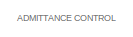
[diagram: root canvas - part 1/3, top left region]
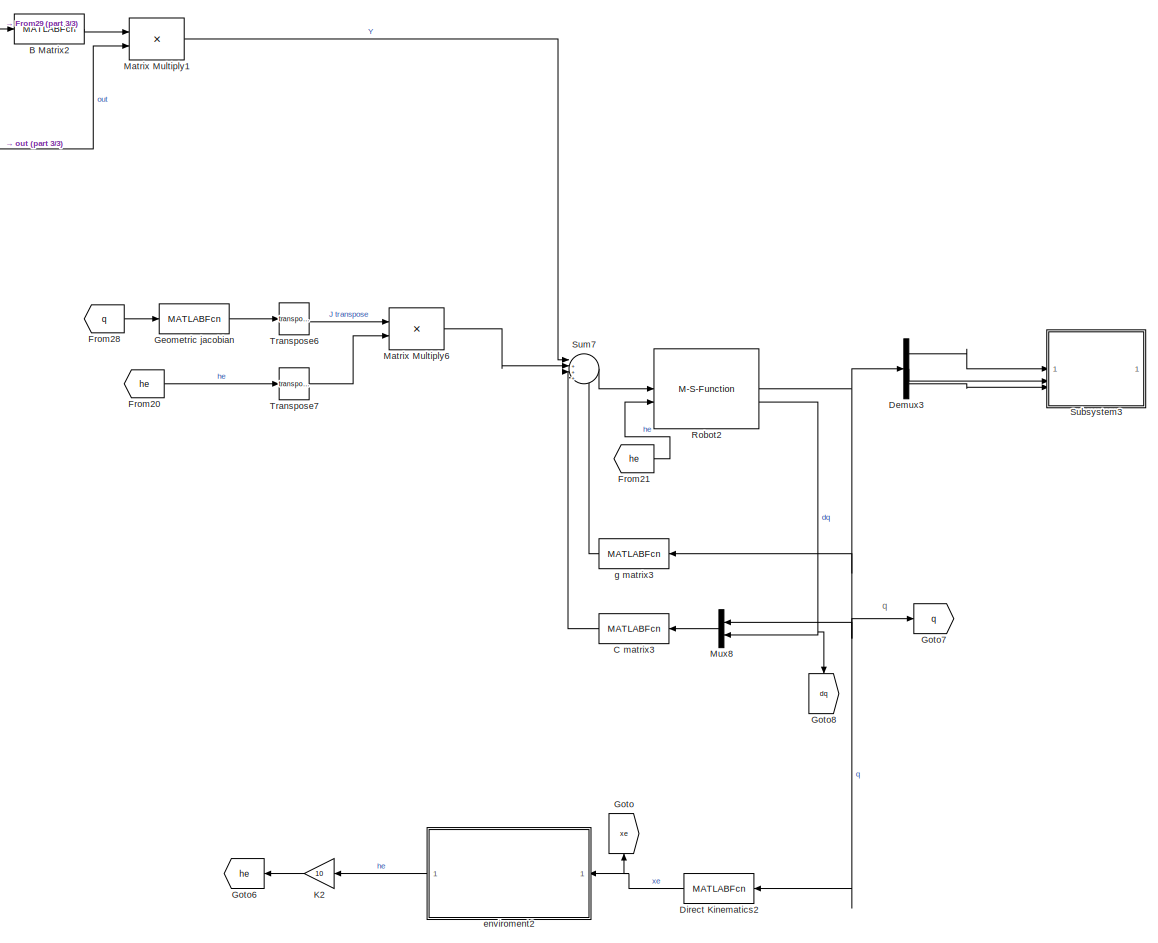
[diagram: root canvas - part 2/3, right side, full height]
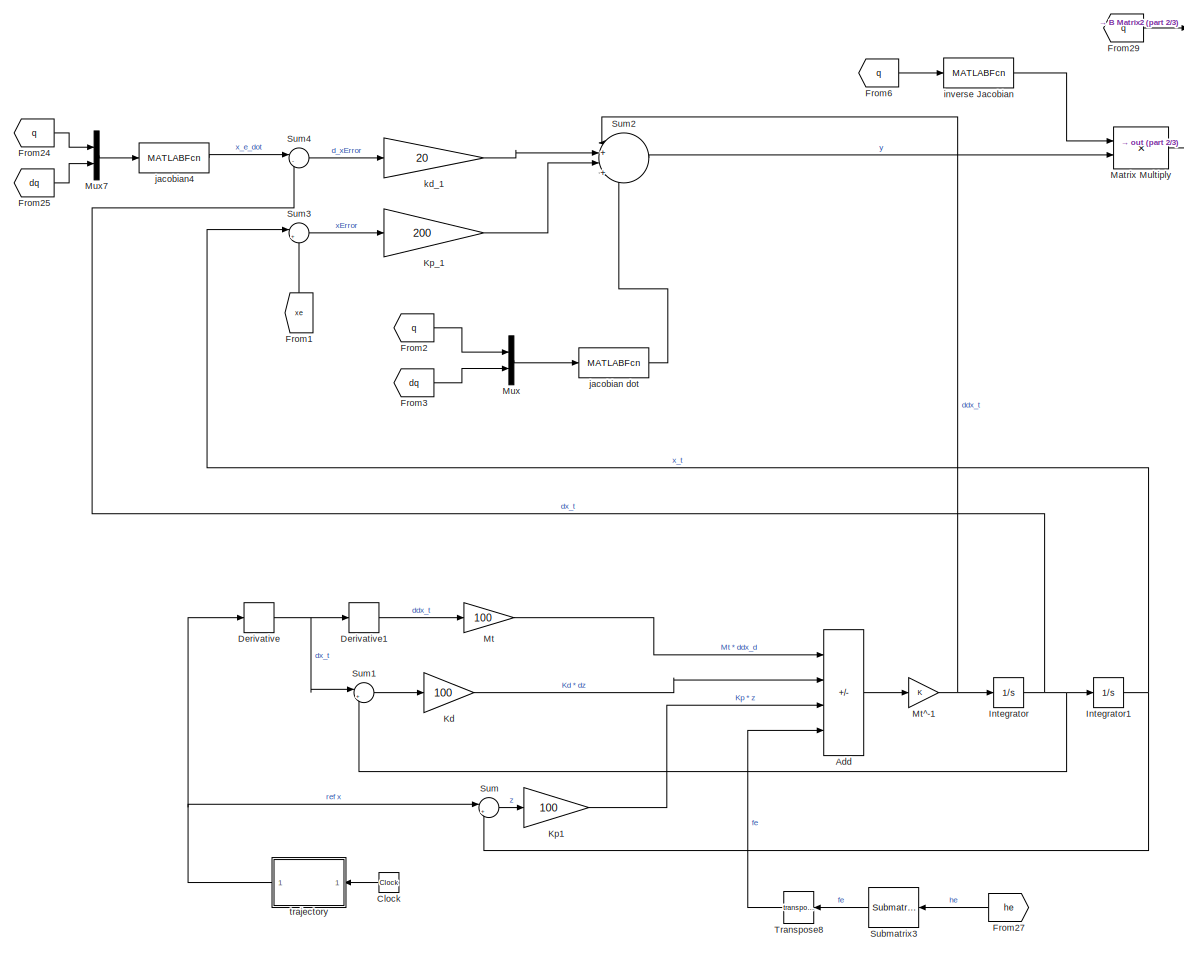
[diagram: root canvas - part 3/3, left side, full height]
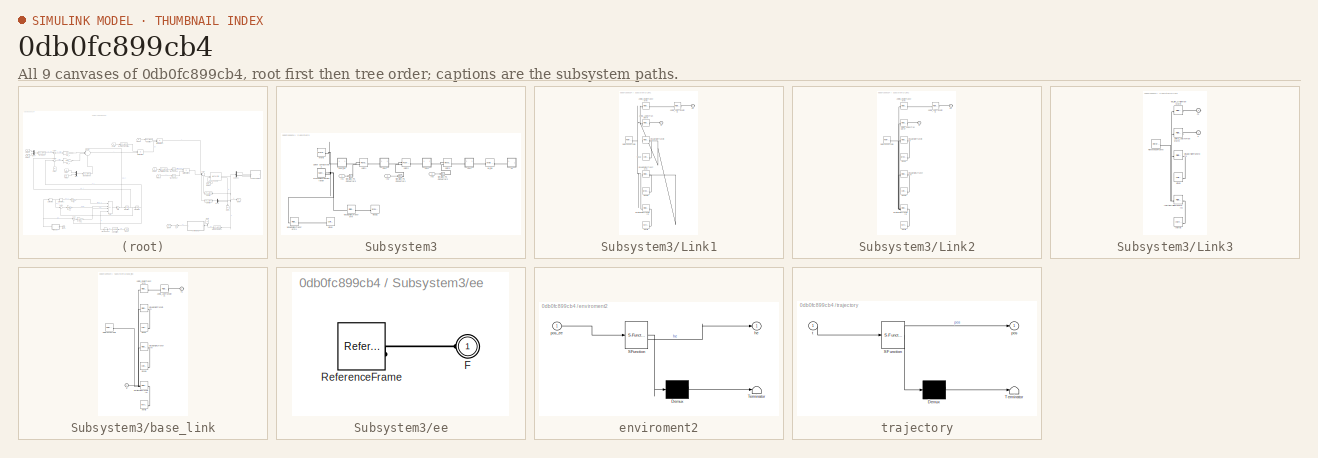
[diagram: thumbnail index - all 9 canvases of the model, root first then tree order]
MODEL slx_0db0fc899cb4
KIND model
CONFIG AbsTol = auto
CONFIG EnableMultiTasking = off
CONFIG FixedStep = auto
CONFIG MaxStep = 10
CONFIG MinStep = auto
CONFIG RelTol = 1
CONFIG SampleTimeConstraint = Unconstrained
CONFIG SolverName = VariableStepAuto
CONFIG StartTime = 0.0
CONFIG StopTime = 10.0
BLOCK [Sum] Add
  IconShape = rectangular
  Inputs = +++-
BLOCK [MATLABFcn] B Matrix2
  MATLABFcn = robotStructure.func.Bmatrix(u(1), u(2), u(3))
  Output1D = off
BLOCK [MATLABFcn] C matrix3
  MATLABFcn = robotStructure.func.Cmatrix(u(1), u(2), u(3), u(4), u(5), u(6)) * [u(4); u(5); u(6)]
  Output1D = off
  OutputSignalType = real
BLOCK [Clock] Clock
  NameLocation = top
BLOCK [Demux] Demux3
  Outputs = 3
BLOCK [Derivative] Derivative
BLOCK [Derivative] Derivative1
BLOCK [MATLABFcn] Direct Kinematics2
  MATLABFcn = robotStructure.func.EE(u(1), u(2), u(3))
  NameLocation = top
  Output1D = off
BLOCK [From] From1
  GotoTag = xe
  NameLocation = right
BLOCK [From] From2
  GotoTag = q
BLOCK [From] From20
  GotoTag = he
BLOCK [From] From21
  GotoTag = he
BLOCK [From] From24
  GotoTag = q
BLOCK [From] From25
  GotoTag = dq
BLOCK [From] From27
  GotoTag = he
  NameLocation = top
BLOCK [From] From28
  GotoTag = q
BLOCK [From] From29
  GotoTag = q
BLOCK [From] From3
  GotoTag = dq
BLOCK [From] From6
  GotoTag = q
BLOCK [MATLABFcn] Geometric jacobian
  MATLABFcn = robotStructure.func.GeometricJacobian(u(1), u(2), u(3))
  Output1D = off
BLOCK [Goto] Goto
  GotoTag = xe
  NameLocation = right
BLOCK [Goto] Goto6
  GotoTag = he
  NameLocation = top
BLOCK [Goto] Goto7
  GotoTag = q
BLOCK [Goto] Goto8
  GotoTag = dq
  NameLocation = left
BLOCK [Integrator] Integrator
BLOCK [Integrator] Integrator1
BLOCK [Gain] K2
  Gain = 10
  NameLocation = top
BLOCK [Gain] Kd
  Gain = 100
BLOCK [Gain] Kp1
  Gain = 100
BLOCK [Gain] Kp_1
  Gain = 200
BLOCK [Product] Matrix Multiply
  Multiplication = Matrix(*)
BLOCK [Product] Matrix Multiply1
  Multiplication = Matrix(*)
BLOCK [Product] Matrix Multiply6
  Multiplication = Matrix(*)
BLOCK [Gain] Mt
  Gain = 100
BLOCK [Gain] Mt^-1
BLOCK [Mux] Mux
  DisplayOption = bar
  Inputs = 2
BLOCK [Mux] Mux7
  DisplayOption = bar
  Inputs = 2
BLOCK [Mux] Mux8
  DisplayOption = bar
  Inputs = 2
  NameLocation = top
BLOCK [M-S-Function] Robot2
  FunctionName = robotDynamicsModel
  Parameters = robotStructure, [0 -0.2 0], [0 0 0]
BLOCK [Reference] Submatrix3  REF=matrix_library/Submatrix
  LibrarySourceBlock = simulink/Matrix\nOperations/Submatrix
  NameLocation = top
  SourceBlock = matrix_library/Submatrix
  SourceType = Submatrix
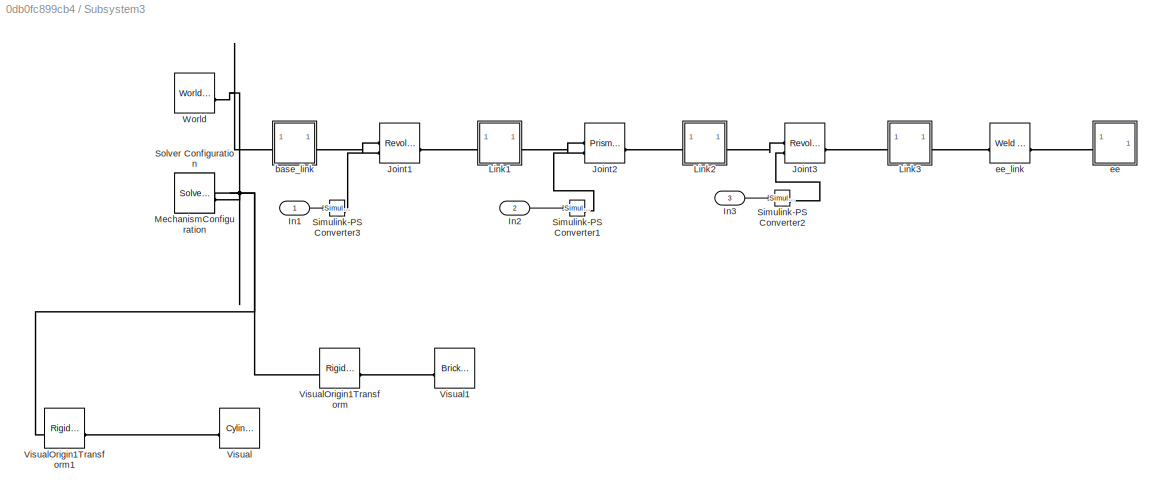
BLOCK [SubSystem] Subsystem3
  Commented = on
BLOCK [Inport] Subsystem3/In1
BLOCK [Inport] Subsystem3/In2
  Port = 2
BLOCK [Inport] Subsystem3/In3
  Port = 3
BLOCK [Reference] Subsystem3/Joint1  REF=sm_lib/Joints/Revolute Joint
  SourceBlock = sm_lib/Joints/Revolute Joint
  SourceType = Revolute Joint
BLOCK [Reference] Subsystem3/Joint2  REF=sm_lib/Joints/Prismatic
Joint
  SourceBlock = sm_lib/Joints/Prismatic\nJoint
  SourceType = Prismatic\nJoint
BLOCK [Reference] Subsystem3/Joint3  REF=sm_lib/Joints/Revolute Joint
  SourceBlock = sm_lib/Joints/Revolute Joint
  SourceType = Revolute Joint
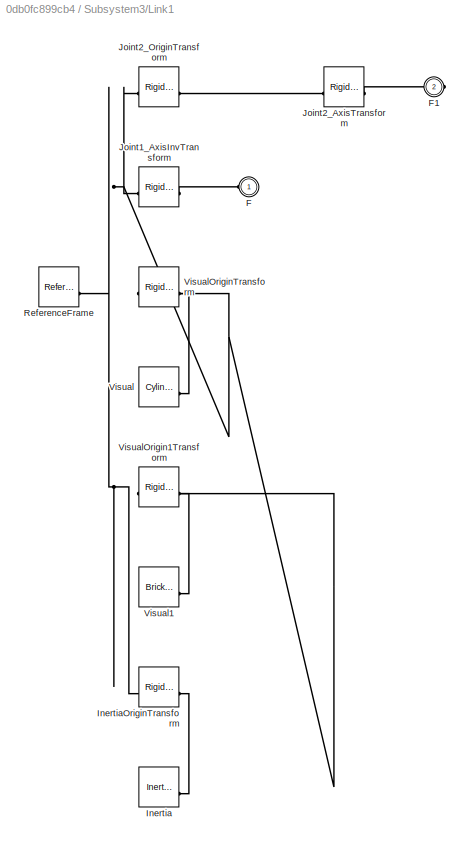
BLOCK [SubSystem] Subsystem3/Link1
BLOCK [PMIOPort] Subsystem3/Link1/F
  Side = Left
BLOCK [PMIOPort] Subsystem3/Link1/F1
  Port = 2
  Side = Right
BLOCK [Reference] Subsystem3/Link1/Inertia  REF=sm_lib/Body Elements/Inertia
  SourceBlock = sm_lib/Body Elements/Inertia
  SourceType = Inertia
BLOCK [Reference] Subsystem3/Link1/InertiaOriginTransform  REF=sm_lib/Frames and
Transforms/Rigid
Transform
  SourceBlock = sm_lib/Frames and\nTransforms/Rigid\nTransform
  SourceType = Rigid\nTransform
BLOCK [Reference] Subsystem3/Link1/Joint1_AxisInvTransform  REF=sm_lib/Frames and
Transforms/Rigid
Transform
  SourceBlock = sm_lib/Frames and\nTransforms/Rigid\nTransform
  SourceType = Rigid\nTransform
BLOCK [Reference] Subsystem3/Link1/Joint2_AxisTransform  REF=sm_lib/Frames and
Transforms/Rigid
Transform
  SourceBlock = sm_lib/Frames and\nTransforms/Rigid\nTransform
  SourceType = Rigid\nTransform
BLOCK [Reference] Subsystem3/Link1/Joint2_OriginTransform  REF=sm_lib/Frames and
Transforms/Rigid
Transform
  SourceBlock = sm_lib/Frames and\nTransforms/Rigid\nTransform
  SourceType = Rigid\nTransform
BLOCK [Reference] Subsystem3/Link1/ReferenceFrame  REF=sm_lib/Frames and
Transforms/Reference
Frame
  SourceBlock = sm_lib/Frames and\nTransforms/Reference\nFrame
  SourceType = Reference\nFrame
BLOCK [Reference] Subsystem3/Link1/Visual  REF=sm_lib/Body Elements/Cylindrical Solid
  SourceBlock = sm_lib/Body Elements/Cylindrical Solid
  SourceType = Cylindrical Solid
BLOCK [Reference] Subsystem3/Link1/Visual1  REF=sm_lib/Body Elements/Brick Solid
  SourceBlock = sm_lib/Body Elements/Brick Solid
  SourceType = Brick Solid
BLOCK [Reference] Subsystem3/Link1/VisualOrigin1Transform  REF=sm_lib/Frames and
Transforms/Rigid
Transform
  SourceBlock = sm_lib/Frames and\nTransforms/Rigid\nTransform
  SourceType = Rigid\nTransform
BLOCK [Reference] Subsystem3/Link1/VisualOriginTransform  REF=sm_lib/Frames and
Transforms/Rigid
Transform
  SourceBlock = sm_lib/Frames and\nTransforms/Rigid\nTransform
  SourceType = Rigid\nTransform
BLOCK [SubSystem] Subsystem3/Link2
BLOCK [PMIOPort] Subsystem3/Link2/F
  Side = Left
BLOCK [PMIOPort] Subsystem3/Link2/F1
  Port = 2
  Side = Right
BLOCK [Reference] Subsystem3/Link2/Inertia  REF=sm_lib/Body Elements/Inertia
  SourceBlock = sm_lib/Body Elements/Inertia
  SourceType = Inertia
BLOCK [Reference] Subsystem3/Link2/InertiaOriginTransform  REF=sm_lib/Frames and
Transforms/Rigid
Transform
  SourceBlock = sm_lib/Frames and\nTransforms/Rigid\nTransform
  SourceType = Rigid\nTransform
BLOCK [Reference] Subsystem3/Link2/Joint2_AxisInvTransform  REF=sm_lib/Frames and
Transforms/Rigid
Transform
  SourceBlock = sm_lib/Frames and\nTransforms/Rigid\nTransform
  SourceType = Rigid\nTransform
BLOCK [Reference] Subsystem3/Link2/Joint3_AxisTransform  REF=sm_lib/Frames and
Transforms/Rigid
Transform
  SourceBlock = sm_lib/Frames and\nTransforms/Rigid\nTransform
  SourceType = Rigid\nTransform
BLOCK [Reference] Subsystem3/Link2/Joint3_OriginTransform  REF=sm_lib/Frames and
Transforms/Rigid
Transform
  SourceBlock = sm_lib/Frames and\nTransforms/Rigid\nTransform
  SourceType = Rigid\nTransform
BLOCK [Reference] Subsystem3/Link2/ReferenceFrame  REF=sm_lib/Frames and
Transforms/Reference
Frame
  SourceBlock = sm_lib/Frames and\nTransforms/Reference\nFrame
  SourceType = Reference\nFrame
BLOCK [Reference] Subsystem3/Link2/Visual  REF=sm_lib/Body Elements/Brick Solid
  SourceBlock = sm_lib/Body Elements/Brick Solid
  SourceType = Brick Solid
BLOCK [Reference] Subsystem3/Link2/Visual1  REF=sm_lib/Body Elements/Cylindrical Solid
  SourceBlock = sm_lib/Body Elements/Cylindrical Solid
  SourceType = Cylindrical Solid
BLOCK [Reference] Subsystem3/Link2/VisualOrigin1Transform  REF=sm_lib/Frames and
Transforms/Rigid
Transform
  SourceBlock = sm_lib/Frames and\nTransforms/Rigid\nTransform
  SourceType = Rigid\nTransform
BLOCK [Reference] Subsystem3/Link2/VisualOriginTransform  REF=sm_lib/Frames and
Transforms/Rigid
Transform
  SourceBlock = sm_lib/Frames and\nTransforms/Rigid\nTransform
  SourceType = Rigid\nTransform
BLOCK [SubSystem] Subsystem3/Link3
BLOCK [PMIOPort] Subsystem3/Link3/F
  Side = Left
BLOCK [PMIOPort] Subsystem3/Link3/F1
  Port = 2
  Side = Right
BLOCK [Reference] Subsystem3/Link3/Inertia  REF=sm_lib/Body Elements/Inertia
  SourceBlock = sm_lib/Body Elements/Inertia
  SourceType = Inertia
BLOCK [Reference] Subsystem3/Link3/InertiaOriginTransform  REF=sm_lib/Frames and
Transforms/Rigid
Transform
  SourceBlock = sm_lib/Frames and\nTransforms/Rigid\nTransform
  SourceType = Rigid\nTransform
BLOCK [Reference] Subsystem3/Link3/Joint3_AxisInvTransform  REF=sm_lib/Frames and
Transforms/Rigid
Transform
  SourceBlock = sm_lib/Frames and\nTransforms/Rigid\nTransform
  SourceType = Rigid\nTransform
BLOCK [Reference] Subsystem3/Link3/ReferenceFrame  REF=sm_lib/Frames and
Transforms/Reference
Frame
  SourceBlock = sm_lib/Frames and\nTransforms/Reference\nFrame
  SourceType = Reference\nFrame
BLOCK [Reference] Subsystem3/Link3/Visual  REF=sm_lib/Body Elements/Cylindrical Solid
  SourceBlock = sm_lib/Body Elements/Cylindrical Solid
  SourceType = Cylindrical Solid
BLOCK [Reference] Subsystem3/Link3/VisualOriginTransform  REF=sm_lib/Frames and
Transforms/Rigid
Transform
  SourceBlock = sm_lib/Frames and\nTransforms/Rigid\nTransform
  SourceType = Rigid\nTransform
BLOCK [Reference] Subsystem3/Link3/ee_link_OriginTransform  REF=sm_lib/Frames and
Transforms/Rigid
Transform
  SourceBlock = sm_lib/Frames and\nTransforms/Rigid\nTransform
  SourceType = Rigid\nTransform
BLOCK [Reference] Subsystem3/MechanismConfiguration  REF=sm_lib/Utilities/Mechanism
Configuration
  SourceBlock = sm_lib/Utilities/Mechanism\nConfiguration
  SourceType = Mechanism\nConfiguration
BLOCK [Reference] Subsystem3/Simulink-PS Converter1  REF=nesl_utility/Simulink-PS
Converter
  SourceBlock = nesl_utility/Simulink-PS\nConverter
  SourceType = Simulink-PS\nConverter
BLOCK [Reference] Subsystem3/Simulink-PS Converter2  REF=nesl_utility/Simulink-PS
Converter
  SourceBlock = nesl_utility/Simulink-PS\nConverter
  SourceType = Simulink-PS\nConverter
BLOCK [Reference] Subsystem3/Simulink-PS Converter3  REF=nesl_utility/Simulink-PS
Converter
  SourceBlock = nesl_utility/Simulink-PS\nConverter
  SourceType = Simulink-PS\nConverter
BLOCK [Reference] Subsystem3/Solver Configuration  REF=nesl_utility/Solver
Configuration
  SourceBlock = nesl_utility/Solver\nConfiguration
  SourceType = Solver\nConfiguration
BLOCK [Reference] Subsystem3/Visual  REF=sm_lib/Body Elements/Cylindrical Solid
  NameLocation = top
  SourceBlock = sm_lib/Body Elements/Cylindrical Solid
  SourceType = Cylindrical Solid
BLOCK [Reference] Subsystem3/Visual1  REF=sm_lib/Body Elements/Brick Solid
  NameLocation = top
  SourceBlock = sm_lib/Body Elements/Brick Solid
  SourceType = Brick Solid
BLOCK [Reference] Subsystem3/VisualOrigin1Transform  REF=sm_lib/Frames and
Transforms/Rigid
Transform
  SourceBlock = sm_lib/Frames and\nTransforms/Rigid\nTransform
  SourceType = Rigid\nTransform
BLOCK [Reference] Subsystem3/VisualOrigin1Transform1  REF=sm_lib/Frames and
Transforms/Rigid
Transform
  SourceBlock = sm_lib/Frames and\nTransforms/Rigid\nTransform
  SourceType = Rigid\nTransform
BLOCK [Reference] Subsystem3/World  REF=sm_lib/Frames and
Transforms/World Frame
  SourceBlock = sm_lib/Frames and\nTransforms/World Frame
  SourceType = World Frame
BLOCK [SubSystem] Subsystem3/base_link
BLOCK [PMIOPort] Subsystem3/base_link/F
  Side = Left
BLOCK [PMIOPort] Subsystem3/base_link/F1
  Port = 2
  Side = Right
BLOCK [Reference] Subsystem3/base_link/Inertia  REF=sm_lib/Body Elements/Inertia
  SourceBlock = sm_lib/Body Elements/Inertia
  SourceType = Inertia
BLOCK [Reference] Subsystem3/base_link/InertiaOriginTransform  REF=sm_lib/Frames and
Transforms/Rigid
Transform
  SourceBlock = sm_lib/Frames and\nTransforms/Rigid\nTransform
  SourceType = Rigid\nTransform
BLOCK [Reference] Subsystem3/base_link/Joint1_AxisTransform  REF=sm_lib/Frames and
Transforms/Rigid
Transform
  SourceBlock = sm_lib/Frames and\nTransforms/Rigid\nTransform
  SourceType = Rigid\nTransform
BLOCK [Reference] Subsystem3/base_link/Joint1_OriginTransform  REF=sm_lib/Frames and
Transforms/Rigid
Transform
  SourceBlock = sm_lib/Frames and\nTransforms/Rigid\nTransform
  SourceType = Rigid\nTransform
BLOCK [Reference] Subsystem3/base_link/ReferenceFrame  REF=sm_lib/Frames and
Transforms/Reference
Frame
  SourceBlock = sm_lib/Frames and\nTransforms/Reference\nFrame
  SourceType = Reference\nFrame
BLOCK [Reference] Subsystem3/base_link/Visual  REF=sm_lib/Body Elements/Cylindrical Solid
  SourceBlock = sm_lib/Body Elements/Cylindrical Solid
  SourceType = Cylindrical Solid
BLOCK [Reference] Subsystem3/base_link/Visual1  REF=sm_lib/Body Elements/Cylindrical Solid
  SourceBlock = sm_lib/Body Elements/Cylindrical Solid
  SourceType = Cylindrical Solid
BLOCK [Reference] Subsystem3/base_link/VisualOrigin1Transform  REF=sm_lib/Frames and
Transforms/Rigid
Transform
  SourceBlock = sm_lib/Frames and\nTransforms/Rigid\nTransform
  SourceType = Rigid\nTransform
BLOCK [Reference] Subsystem3/base_link/VisualOriginTransform  REF=sm_lib/Frames and
Transforms/Rigid
Transform
  SourceBlock = sm_lib/Frames and\nTransforms/Rigid\nTransform
  SourceType = Rigid\nTransform
BLOCK [SubSystem] Subsystem3/ee
BLOCK [PMIOPort] Subsystem3/ee/F
  Side = Left
BLOCK [Reference] Subsystem3/ee/ReferenceFrame  REF=sm_lib/Frames and
Transforms/Reference
Frame
  SourceBlock = sm_lib/Frames and\nTransforms/Reference\nFrame
  SourceType = Reference\nFrame
BLOCK [Reference] Subsystem3/ee_link  REF=sm_lib/Joints/Weld Joint
  SourceBlock = sm_lib/Joints/Weld Joint
  SourceType = Weld Joint
BLOCK [Sum] Sum
  Inputs = |+-
BLOCK [Sum] Sum1
  Inputs = |+-
BLOCK [Sum] Sum2
  Inputs = |+|+|+|-
BLOCK [Sum] Sum3
  Inputs = |+-
BLOCK [Sum] Sum4
  Inputs = |-+
BLOCK [Sum] Sum7
  Inputs = |++++
BLOCK [Math] Transpose6
  Operator = transpose
BLOCK [Math] Transpose7
  Operator = transpose
BLOCK [Math] Transpose8
  NameLocation = top
  Operator = transpose
BLOCK [SubSystem] enviroment2
  ErrorFcn = Stateflow.Translate.translate
  NameLocation = top
  PermitHierarchicalResolution = ExplicitOnly
  SFBlockType = MATLAB Function
  TreatAsAtomicUnit = on
BLOCK [Demux] enviroment2/ Demux 
  Outputs = 1
BLOCK [S-Function] enviroment2/ SFunction 
  EnableBusSupport = on
  FunctionName = sf_sfun
  PortCounts = [1 2]
  SFcnIsStateOwnerBlock = off
  SFunctionDeploymentMode = off
  Tag = Stateflow S-Function 3
BLOCK [Terminator] enviroment2/ Terminator 
BLOCK [Outport] enviroment2/he
BLOCK [Inport] enviroment2/pos_ee
BLOCK [MATLABFcn] g matrix3
  MATLABFcn = robotStructure.func.Gmatrix(u(1), u(2), u(3))
  Output1D = off
  OutputSignalType = real
BLOCK [MATLABFcn] inverse Jacobian
  MATLABFcn = robotStructure.func.AnalitycalJacobianInverse(u(1), u(2), u(3))
  Output1D = off
BLOCK [MATLABFcn] jacobian dot
  MATLABFcn = robotStructure.func.AnalitycalJacobianDot(u(1), u(2), u(3), u(4), u(5), u(6)) *  [u(4),u(5),u(6)]'
  Output1D = off
  OutputDimensions = [3,1]
  OutputSignalType = real
BLOCK [MATLABFcn] jacobian4
  MATLABFcn = robotStructure.func.AnalitycalJacobian(u(1), u(2), u(3)) * [u(4); u(5); u(6)]
  Output1D = off
BLOCK [Gain] kd_1
  Gain = 20
BLOCK [SubSystem] trajectory
  ErrorFcn = Stateflow.Translate.translate
  NameLocation = top
  PermitHierarchicalResolution = ExplicitOnly
  SFBlockType = MATLAB Function
  TreatAsAtomicUnit = on
BLOCK [Demux] trajectory/ Demux 
  Outputs = 1
BLOCK [S-Function] trajectory/ SFunction 
  EnableBusSupport = on
  FunctionName = sf_sfun
  PortCounts = [1 2]
  SFcnIsStateOwnerBlock = off
  SFunctionDeploymentMode = off
  Tag = Stateflow S-Function 2
BLOCK [Terminator] trajectory/ Terminator 
BLOCK [Outport] trajectory/pos
BLOCK [Inport] trajectory/t
ANNOTATION (root): ADMITTANCE CONTROL
ANNOTATION (root): q
LINE Add:1 -> Mt^-1:1
LINE B Matrix2:1 -> Matrix Multiply1:1
LINE C matrix3:1 -> Sum7:3
LINE Clock:1 -> trajectory:1
LINE Demux3:1 -> Subsystem3:1
LINE Demux3:2 -> Subsystem3:2
LINE Demux3:3 -> Subsystem3:3
LINE Derivative1:1 -> Mt:1
NET Derivative:1 -> Derivative1:1, Sum1:1
NET Direct Kinematics2:1 -> Goto:1, enviroment2:1
LINE From1:1 -> Sum3:2
LINE From20:1 -> Transpose7:1
LINE From21:1 -> Robot2:2
LINE From24:1 -> Mux7:1
LINE From25:1 -> Mux7:2
LINE From27:1 -> Submatrix3:1
LINE From28:1 -> Geometric jacobian:1
LINE From29:1 -> B Matrix2:1
LINE From2:1 -> Mux:1
LINE From3:1 -> Mux:2
LINE From6:1 -> inverse Jacobian:1
LINE Geometric jacobian:1 -> Transpose6:1
NET Integrator1:1 -> Sum3:1, Sum:2
NET Integrator:1 -> Integrator1:1, Sum1:2, Sum4:2
LINE K2:1 -> Goto6:1
LINE Kd:1 -> Add:2
LINE Kp1:1 -> Add:3
LINE Kp_1:1 -> Sum2:3
LINE Matrix Multiply1:1 -> Sum7:1
LINE Matrix Multiply6:1 -> Sum7:2
LINE Matrix Multiply:1 -> Matrix Multiply1:2
LINE Mt:1 -> Add:1
NET Mt^-1:1 -> Integrator:1, Sum2:1
LINE Mux7:1 -> jacobian4:1
LINE Mux8:1 -> C matrix3:1
LINE Mux:1 -> jacobian dot:1
NET Robot2:1 -> Demux3:1, Direct Kinematics2:1, Goto7:1, Mux8:1, g matrix3:1
NET Robot2:2 -> Goto8:1, Mux8:2
LINE Submatrix3:1 -> Transpose8:1
LINE Subsystem3/In1:1 -> Subsystem3/Simulink-PS Converter3:1
LINE Subsystem3/In2:1 -> Subsystem3/Simulink-PS Converter1:1
LINE Subsystem3/In3:1 -> Subsystem3/Simulink-PS Converter2:1
LINE Sum1:1 -> Kd:1
LINE Sum2:1 -> Matrix Multiply:2
LINE Sum3:1 -> Kp_1:1
LINE Sum4:1 -> kd_1:1
LINE Sum7:1 -> Robot2:1
LINE Sum:1 -> Kp1:1
LINE Transpose6:1 -> Matrix Multiply6:1
LINE Transpose7:1 -> Matrix Multiply6:2
LINE Transpose8:1 -> Add:4
LINE enviroment2:1 -> K2:1
LINE g matrix3:1 -> Sum7:4
LINE inverse Jacobian:1 -> Matrix Multiply:1
LINE jacobian dot:1 -> Sum2:4
LINE jacobian4:1 -> Sum4:1
LINE kd_1:1 -> Sum2:2
NET trajectory:1 -> Derivative:1, Sum:1
PLINE Subsystem3/Joint1:LConn1 -- Subsystem3/base_link:RConn1
PLINE Subsystem3/Joint1:LConn2 -- Subsystem3/Simulink-PS Converter3:RConn1
PLINE Subsystem3/Joint1:RConn1 -- Subsystem3/Link1:LConn1
PLINE Subsystem3/Joint2:LConn1 -- Subsystem3/Link1:RConn1
PLINE Subsystem3/Joint2:LConn2 -- Subsystem3/Simulink-PS Converter1:RConn1
PLINE Subsystem3/Joint2:RConn1 -- Subsystem3/Link2:LConn1
PLINE Subsystem3/Joint3:LConn1 -- Subsystem3/Link2:RConn1
PLINE Subsystem3/Joint3:LConn2 -- Subsystem3/Simulink-PS Converter2:RConn1
PLINE Subsystem3/Joint3:RConn1 -- Subsystem3/Link3:LConn1
PLINE Subsystem3/Link1/F1:RConn1 -- Subsystem3/Link1/Joint2_AxisTransform:RConn1
PLINE Subsystem3/Link1/F:RConn1 -- Subsystem3/Link1/Joint1_AxisInvTransform:RConn1
PLINE Subsystem3/Link1/Inertia:RConn1 -- Subsystem3/Link1/InertiaOriginTransform:RConn1
PNET net1: Subsystem3/Link1/InertiaOriginTransform:LConn1 -- Subsystem3/Link1/Joint1_AxisInvTransform:LConn1 -- Subsystem3/Link1/Joint2_OriginTransform:LConn1 -- Subsystem3/Link1/ReferenceFrame:RConn1 -- Subsystem3/Link1/VisualOrigin1Transform:LConn1 -- Subsystem3/Link1/VisualOriginTransform:LConn1
PLINE Subsystem3/Link1/Joint2_AxisTransform:LConn1 -- Subsystem3/Link1/Joint2_OriginTransform:RConn1
PLINE Subsystem3/Link1/Visual1:RConn1 -- Subsystem3/Link1/VisualOrigin1Transform:RConn1
PLINE Subsystem3/Link1/Visual:RConn1 -- Subsystem3/Link1/VisualOriginTransform:RConn1
PLINE Subsystem3/Link2/F1:RConn1 -- Subsystem3/Link2/Joint3_AxisTransform:RConn1
PLINE Subsystem3/Link2/F:RConn1 -- Subsystem3/Link2/Joint2_AxisInvTransform:RConn1
PLINE Subsystem3/Link2/Inertia:RConn1 -- Subsystem3/Link2/InertiaOriginTransform:RConn1
PNET net2: Subsystem3/Link2/InertiaOriginTransform:LConn1 -- Subsystem3/Link2/Joint2_AxisInvTransform:LConn1 -- Subsystem3/Link2/Joint3_OriginTransform:LConn1 -- Subsystem3/Link2/ReferenceFrame:RConn1 -- Subsystem3/Link2/VisualOrigin1Transform:LConn1 -- Subsystem3/Link2/VisualOriginTransform:LConn1
PLINE Subsystem3/Link2/Joint3_AxisTransform:LConn1 -- Subsystem3/Link2/Joint3_OriginTransform:RConn1
PLINE Subsystem3/Link2/Visual1:RConn1 -- Subsystem3/Link2/VisualOrigin1Transform:RConn1
PLINE Subsystem3/Link2/Visual:RConn1 -- Subsystem3/Link2/VisualOriginTransform:RConn1
PLINE Subsystem3/Link3/F1:RConn1 -- Subsystem3/Link3/ee_link_OriginTransform:RConn1
PLINE Subsystem3/Link3/F:RConn1 -- Subsystem3/Link3/Joint3_AxisInvTransform:RConn1
PLINE Subsystem3/Link3/Inertia:RConn1 -- Subsystem3/Link3/InertiaOriginTransform:RConn1
PNET net3: Subsystem3/Link3/InertiaOriginTransform:LConn1 -- Subsystem3/Link3/Joint3_AxisInvTransform:LConn1 -- Subsystem3/Link3/ReferenceFrame:RConn1 -- Subsystem3/Link3/VisualOriginTransform:LConn1 -- Subsystem3/Link3/ee_link_OriginTransform:LConn1
PLINE Subsystem3/Link3/Visual:RConn1 -- Subsystem3/Link3/VisualOriginTransform:RConn1
PLINE Subsystem3/Link3:RConn1 -- Subsystem3/ee_link:LConn1
PNET net4: Subsystem3/MechanismConfiguration:RConn1 -- Subsystem3/Solver Configuration:RConn1 -- Subsystem3/VisualOrigin1Transform1:LConn1 -- Subsystem3/VisualOrigin1Transform:LConn1 -- Subsystem3/World:RConn1 -- Subsystem3/base_link:LConn1
PLINE Subsystem3/Visual1:RConn1 -- Subsystem3/VisualOrigin1Transform:RConn1
PLINE Subsystem3/Visual:RConn1 -- Subsystem3/VisualOrigin1Transform1:RConn1
PLINE Subsystem3/base_link/F1:RConn1 -- Subsystem3/base_link/Joint1_AxisTransform:RConn1
PNET net5: Subsystem3/base_link/F:RConn1 -- Subsystem3/base_link/InertiaOriginTransform:LConn1 -- Subsystem3/base_link/Joint1_OriginTransform:LConn1 -- Subsystem3/base_link/ReferenceFrame:RConn1 -- Subsystem3/base_link/VisualOrigin1Transform:LConn1 -- Subsystem3/base_link/VisualOriginTransform:LConn1
PLINE Subsystem3/base_link/Inertia:RConn1 -- Subsystem3/base_link/InertiaOriginTransform:RConn1
PLINE Subsystem3/base_link/Joint1_AxisTransform:LConn1 -- Subsystem3/base_link/Joint1_OriginTransform:RConn1
PLINE Subsystem3/base_link/Visual1:RConn1 -- Subsystem3/base_link/VisualOrigin1Transform:RConn1
PLINE Subsystem3/base_link/Visual:RConn1 -- Subsystem3/base_link/VisualOriginTransform:RConn1
PLINE Subsystem3/ee/F:RConn1 -- Subsystem3/ee/ReferenceFrame:RConn1
PLINE Subsystem3/ee:LConn1 -- Subsystem3/ee_link:RConn1
note: NET lines group one-source signal fan-out (src -> all destinations, sorted); 1:1 wires keep LINE; PNET lines group multi-terminal physical nets as a canonical sorted terminal list (undirected conserving connections); 2-terminal nets keep the pairwise PLINE form
CHART trajectory states=1 transitions=1
  STATE_LABEL 'eML_blk_kernel()'
  STATE_LABEL "SCRIPT:\nfunction pos = fcn(t)\n\n    % Generate trajectory\n    %x =  r * cos(w*t+0.1); % X-coordinate\n    x= 0.4;\n    y = -0.54;\n    z = 0.15;\n    \n    % Output as a 1x3 vector\n    pos = [x, y, z]';\n\n\n\n\n   %  % Circular trajectory generator\n   %  r = 0.05; % Radius\n   %  w = 2;  % Angular velocity\n   % \n   % \n   % % k = 5; % Controls the steepness of the ramp\n   % % smooth_ramp = 1 / (1 + exp(-k * (...<+288ch>"
CHART enviroment2 states=1 transitions=1
  STATE_LABEL 'eML_blk_kernel()'
  STATE_LABEL 'SCRIPT:\nfunction he  = fcn(pos_ee)\n\n% plane\na = 0; b = 1; c = 0; d = 0.4;\n\nx0 = pos_ee(1);\ny0 = pos_ee(2);\nz0 = pos_ee(3);\n\n% distance\ndistance_to_plane = (a * x0 + b * y0 + c * z0 + d) / sqrt(a ^ 2 + b ^ 2 + c ^ 2);\n\n\n\n\nif distance_to_plane>=0\n    he = [0 0 0 0 0 0];\nelse     \n    he = [0 distance_to_plane 0 0 0 0];\n\n\n\n    \n\n\nend\n\nend\n\n\n\n\n'
CHART  states=0 transitions=0
CHART  states=0 transitions=0
